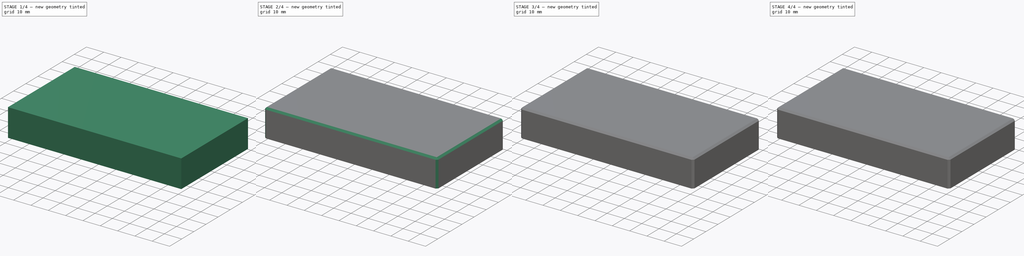
[diagram: build sequence overview — one tinted view per stage of 4, left to right]
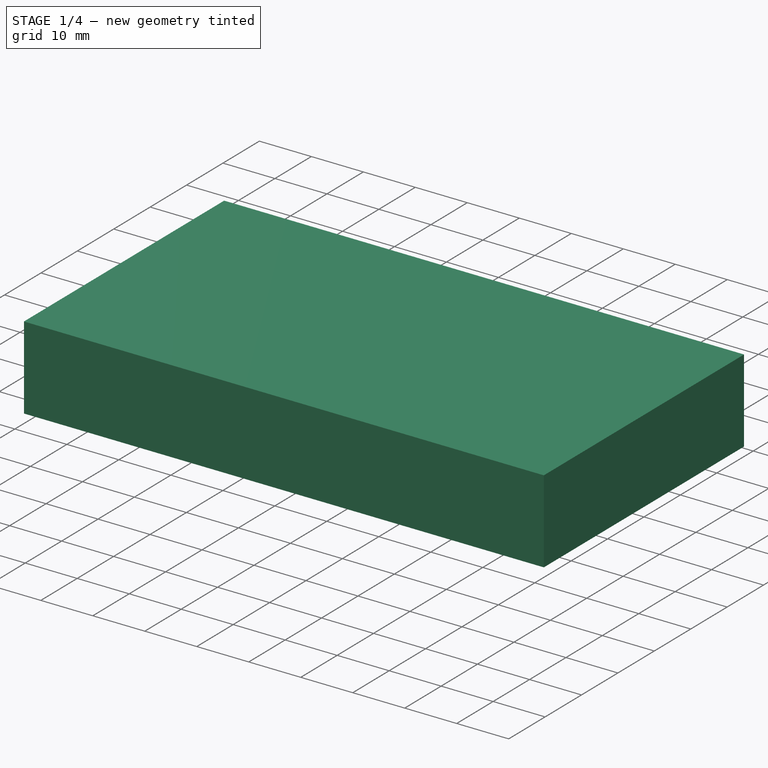
[diagram: stage 1 of 4 — iso view after this stage's code; geometry added in this stage tinted green]
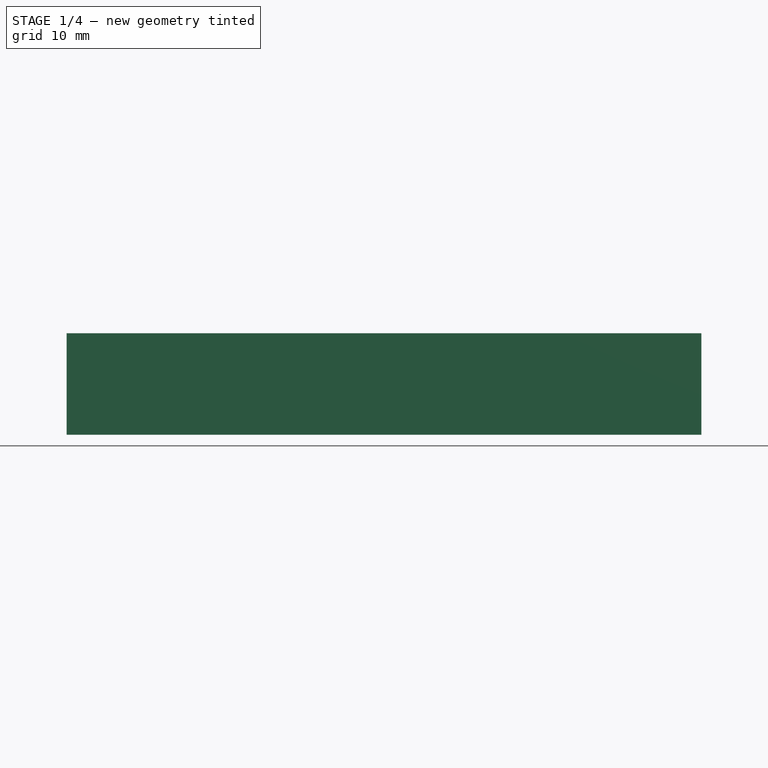
[diagram: stage 1 of 4 — front view after this stage's code; geometry added in this stage tinted green]
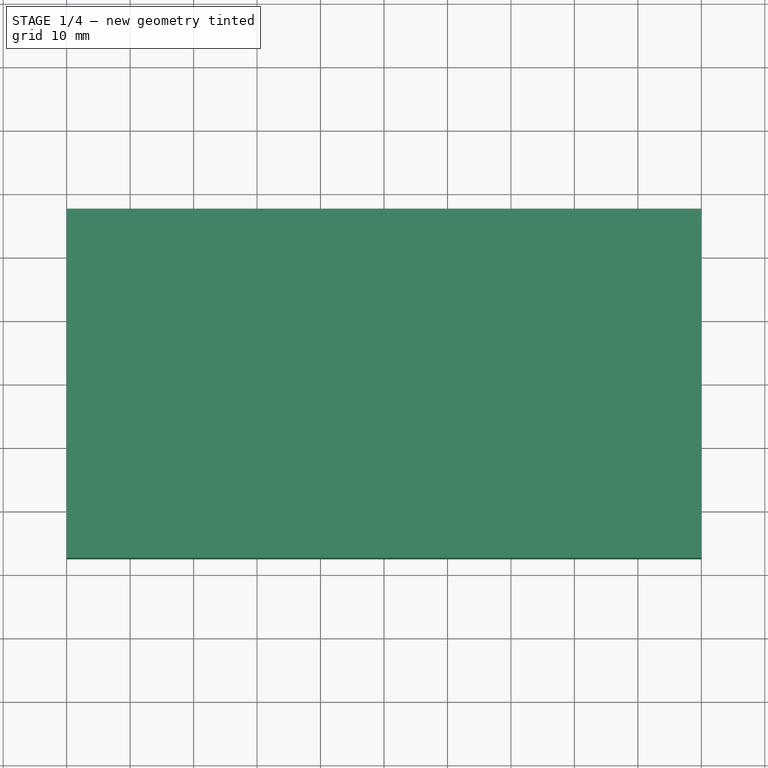
[diagram: stage 1 of 4 — top view after this stage's code; geometry added in this stage tinted green]
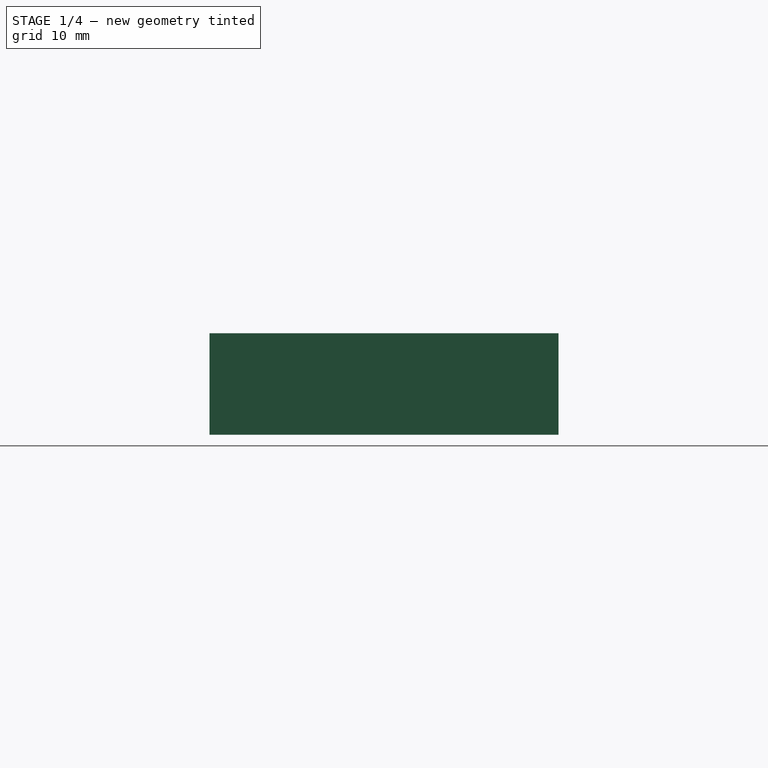
[diagram: stage 1 of 4 — right view after this stage's code; geometry added in this stage tinted green]
FCSTD DOCUMENT  (FreeCAD 0.20R29410 (Git))
Label: ShellA
License: All rights reserved
LicenseURL: http://en.wikipedia.org/wiki/All_rights_reserved
objects: Sketcher::SketchObject×7, PartDesign::Pocket×4, PartDesign::Pad×3, PartDesign::Chamfer×3, PartDesign::Mirrored×2, PartDesign::Thickness×1, PartDesign::CoordinateSystem×1, PartDesign::Body×1
note: 33 computed .brp shape members not serialized (recipe doc carries the construction recipe); baked Part::Feature solids carry a one-line shape summary decoded from their .brp

FEATURE [Sketcher::SketchObject] Sketch  label="TopProfile"
  FullyConstrained = true
  MapMode = 5
  Support = -> [XY_Plane]
  sketch-geometry (5):
    g0: LineSegment StartX=-50 StartY=27.5 StartZ=0 EndX=-50 EndY=-27.5 EndZ=0
    g1: LineSegment StartX=-50 StartY=-27.5 StartZ=0 EndX=50 EndY=-27.5 EndZ=0
    g2: LineSegment StartX=50 StartY=-27.5 StartZ=0 EndX=50 EndY=27.5 EndZ=0
    g3: LineSegment StartX=50 StartY=27.5 StartZ=0 EndX=-50 EndY=27.5 EndZ=0
    g4: GeomPoint X=0 Y=0 Z=0
  constraints (12):
    c: Coincident(g0,g1)
    c: Coincident(g1,g2)
    c: Coincident(g2,g3)
    c: Coincident(g3,g0)
    c: Horizontal(g1)
    c: Horizontal(g3)
    c: Vertical(g0)
    c: Vertical(g2)
    c: Symmetric(g1,g0,g4)
    c: Coincident(g4,g-1)
    c: DistanceX(g3,g3) = 100
    c: DistanceY(g0,g0) = 55
FEATURE [Sketcher::SketchObject] Sketch001  label="SideProfile"
  ExternalGeometry = -> [Sketch]
  FullyConstrained = true
  MapMode = 5
  Placement = pos=(0,0,0) rot=(0.57735,0.57735,0.57735;2.0944rad)
  Support = -> [YZ_Plane]
  sketch-geometry (8):
    g0: LineSegment StartX=-27.5 StartY=-2.15e-14 StartZ=0 EndX=-27.5 EndY=16 EndZ=0
    g1: LineSegment StartX=-27.5 StartY=16 StartZ=0 EndX=0 EndY=16 EndZ=0
    g2: LineSegment StartX=0 StartY=16 StartZ=0 EndX=0 EndY=14 EndZ=0
    g3: LineSegment StartX=0 StartY=14 StartZ=0 EndX=-24.5 EndY=14 EndZ=0
    g4: LineSegment StartX=-24.5 StartY=14 StartZ=0 EndX=-24.5 EndY=3 EndZ=0
    g5: LineSegment StartX=-24.5 StartY=3 StartZ=0 EndX=-26 EndY=3 EndZ=0
    g6: LineSegment StartX=-26 StartY=3 StartZ=0 EndX=-26 EndY=0 EndZ=0
    g7: LineSegment StartX=-26 StartY=0 StartZ=0 EndX=-27.5 EndY=-2.15e-14 EndZ=0
  constraints (23):
    c: Coincident(g0,g-3)
    c: Vertical(g0)
    c: Coincident(g0,g1)
    c: PointOnObject(g1,g-2)
    c: Horizontal(g1)
    c: Coincident(g1,g2)
    c: PointOnObject(g2,g-2)
    c: Coincident(g2,g3)
    c: Horizontal(g3)
    c: Coincident(g3,g4)
    c: Vertical(g4)
    c: Coincident(g4,g5)
    c: Horizontal(g5)
    c: Coincident(g5,g6)
    c: PointOnObject(g6,g-1)
    c: Vertical(g6)
    c: Coincident(g6,g7)
    c: Coincident(g7,g0)
    c: DistanceY(g6,g6) = 3  'CutoutHeight'
    c: DistanceY(g0,g0) = 16  'ShellHeight'
    c: DistanceY(g2,g2) = 2  'BaseThickness'
    c: DistanceX(g0,g3) = 3  'WallThickness'
    c: DistanceX(g7,g7) = 1.5  'CutoutThickness'
FEATURE [PartDesign::Pad] Pad
  Direction = (0,0,1)
  Length = 16
  Length2 = 10
  Profile = -> Sketch
  ReferenceAxis = -> Sketch [N_Axis]
  Type = 0
  expr: Length = <<SideProfile>>.Constraints.ShellHeight
FEATURE [PartDesign::Thickness] Thickness
  Base = -> Pad [Face5]
  BaseFeature = -> Pad
  Intersection = false
  Join = 0
  Mode = 0
  Reversed = true
  SupportTransform = false
  Value = 3
  expr: Value = <<SideProfile>>.Constraints.WallThickness
FEATURE [PartDesign::Pocket] Pocket
  BaseFeature = -> Thickness
  Direction = (0,0,1)
  Length = 1
  Length2 = 5
  Profile = -> Thickness [Face11]
  Type = 0
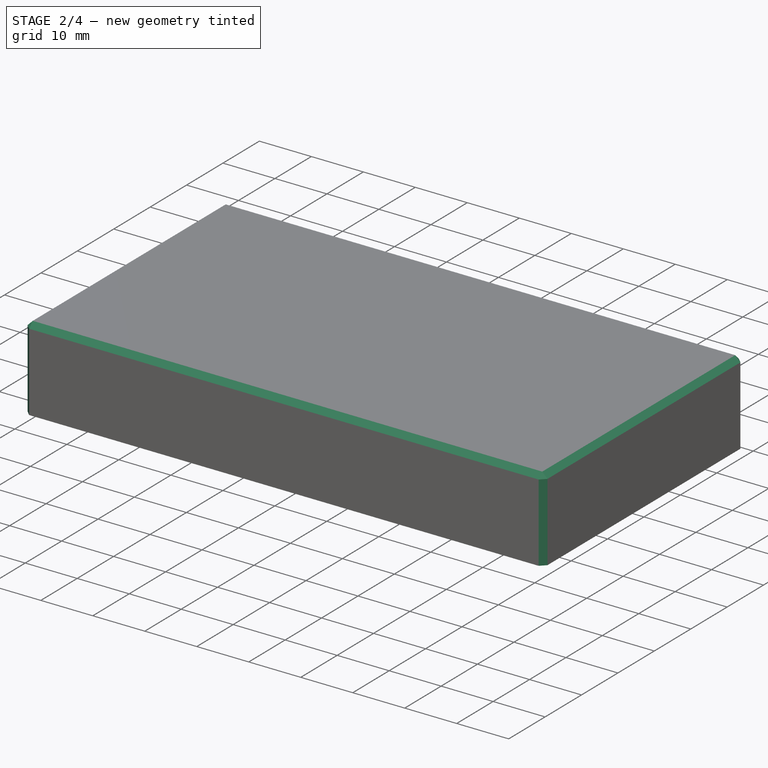
[diagram: stage 2 of 4 — iso view after this stage's code; geometry added in this stage tinted green]
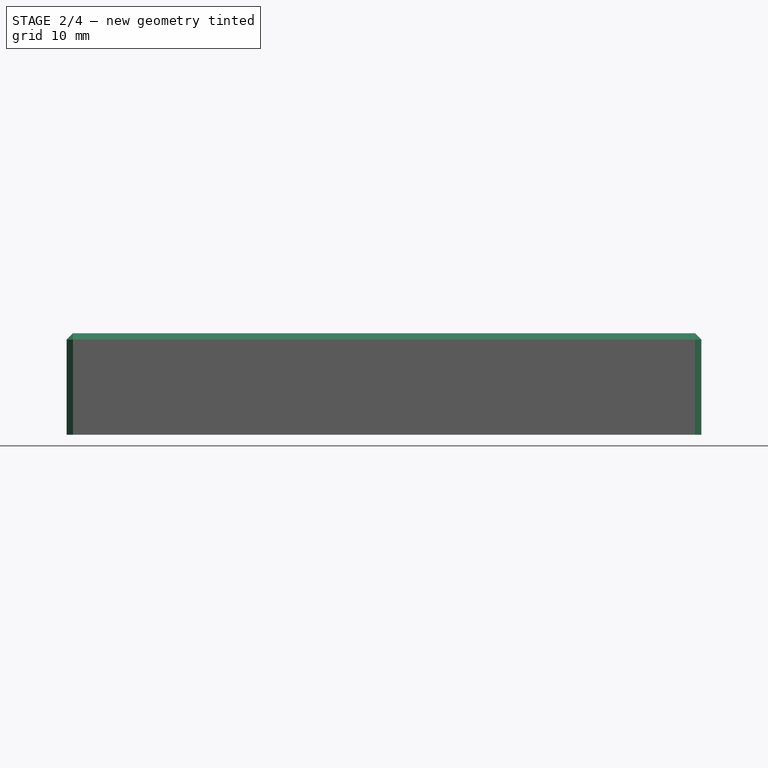
[diagram: stage 2 of 4 — front view after this stage's code; geometry added in this stage tinted green]
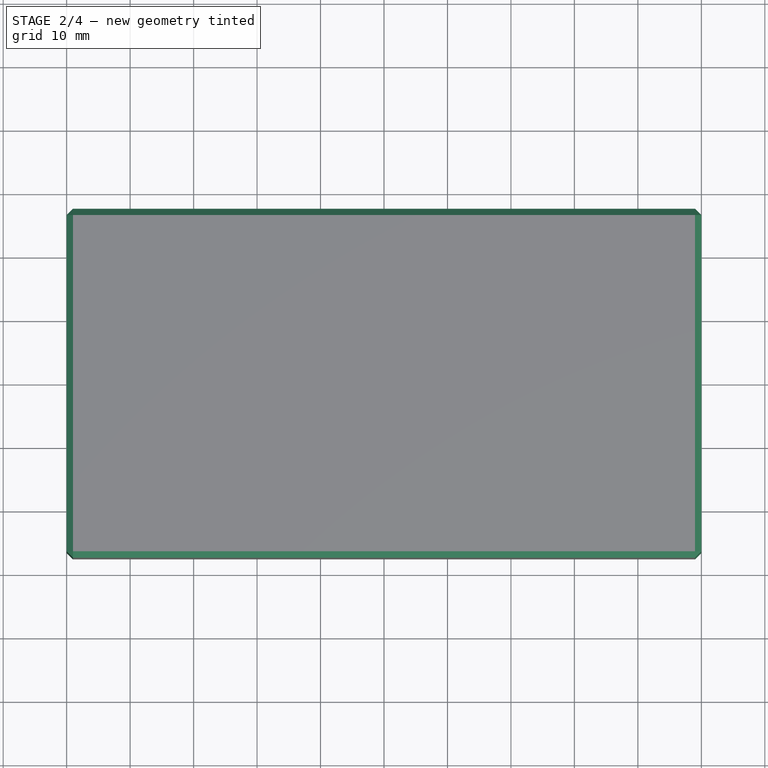
[diagram: stage 2 of 4 — top view after this stage's code; geometry added in this stage tinted green]
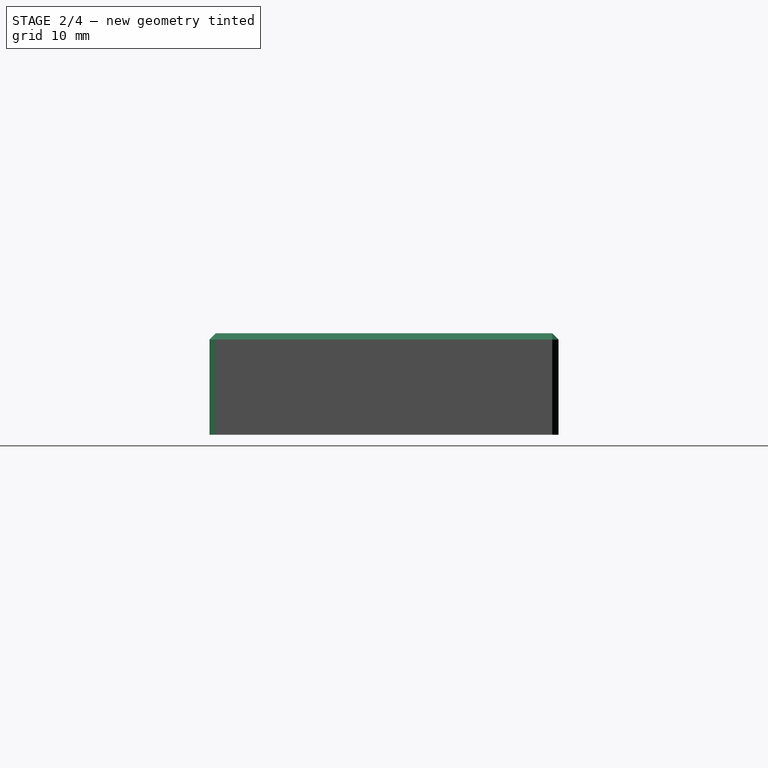
[diagram: stage 2 of 4 — right view after this stage's code; geometry added in this stage tinted green]
FEATURE [Sketcher::SketchObject] Sketch002
  ExternalGeometry = -> [Pocket]
  FullyConstrained = true
  MapMode = 5
  Placement = pos=(0,0,0) rot=(1,0,0;3.14159rad)
  Support = -> [Pocket]
  expr: Constraints[10] = <<SideProfile>>.Constraints.CutoutThickness
  expr: Constraints[11] = <<SideProfile>>.Constraints.CutoutThickness
  sketch-geometry (5):
    g0: LineSegment StartX=-48.5 StartY=26 StartZ=0 EndX=-48.5 EndY=-26 EndZ=0
    g1: LineSegment StartX=-48.5 StartY=-26 StartZ=0 EndX=48.5 EndY=-26 EndZ=0
    g2: LineSegment StartX=48.5 StartY=-26 StartZ=0 EndX=48.5 EndY=26 EndZ=0
    g3: LineSegment StartX=48.5 StartY=26 StartZ=0 EndX=-48.5 EndY=26 EndZ=0
    g4: GeomPoint X=0 Y=0 Z=0
  constraints (12):
    c: Coincident(g0,g1)
    c: Coincident(g1,g2)
    c: Coincident(g2,g3)
    c: Coincident(g3,g0)
    c: Horizontal(g1)
    c: Horizontal(g3)
    c: Vertical(g0)
    c: Vertical(g2)
    c: Symmetric(g1,g0,g4)
    c: Coincident(g4,g-1)
    c: DistanceX(g-3,g0) = 1.5
    c: DistanceY(g0,g-3) = 1.5
FEATURE [PartDesign::Pocket] Pocket001
  BaseFeature = -> Pocket
  Direction = (0,0,1)
  Length = 3
  Length2 = 5
  Profile = -> Sketch002
  ReferenceAxis = -> Sketch002 [N_Axis]
  Type = 0
  expr: Length = <<SideProfile>>.Constraints.CutoutHeight
FEATURE [PartDesign::Chamfer] Chamfer
  Angle = 45
  Base = -> Pocket001 [Edge1,Edge2,Edge5,Edge8,Edge16,Edge7,Edge4,Edge10]
  BaseFeature = -> Pocket001
  ChamferType = 0
  FlipDirection = false
  Size = 1
  Size2 = 1
  SupportTransform = false
  UseAllEdges = false
FEATURE [Sketcher::SketchObject] Sketch003
  ExternalGeometry = -> [Chamfer]
  FullyConstrained = true
  MapMode = 5
  Placement = pos=(0,0,14) rot=(1,0,0;3.14159rad)
  Support = -> [Chamfer]
  sketch-geometry (12):
    g0: LineSegment StartX=-36 StartY=24.5 StartZ=0 EndX=-34.5 EndY=24.5 EndZ=0
    g1: LineSegment StartX=-34.5 StartY=24.5 StartZ=0 EndX=-34.5 EndY=-24.5 EndZ=0
    g2: LineSegment StartX=-34.5 StartY=-24.5 StartZ=0 EndX=-36 EndY=-24.5 EndZ=0
    g3: LineSegment StartX=-36 StartY=-24.5 StartZ=0 EndX=-36 EndY=24.5 EndZ=0
    g4: GeomPoint X=0 Y=24.5 Z=0
    g5: GeomPoint X=-23.5 Y=24.5 Z=0
    g6: GeomPoint X=-35.25 Y=24.5 Z=0
    g7: LineSegment StartX=-12.5 StartY=24.5 StartZ=0 EndX=-11 EndY=24.5 EndZ=0
    g8: LineSegment StartX=-11 StartY=24.5 StartZ=0 EndX=-11 EndY=-24.5 EndZ=0
    g9: LineSegment StartX=-11 StartY=-24.5 StartZ=0 EndX=-12.5 EndY=-24.5 EndZ=0
    g10: LineSegment StartX=-12.5 StartY=-24.5 StartZ=0 EndX=-12.5 EndY=24.5 EndZ=0
    g11: GeomPoint X=-11.75 Y=24.5 Z=0
  constraints (27):
    c: Coincident(g0,g1)
    c: Coincident(g1,g2)
    c: Coincident(g2,g3)
    c: Coincident(g3,g0)
    c: Horizontal(g0)
    c: Horizontal(g2)
    c: Vertical(g1)
    c: Vertical(g3)
    c: PointOnObject(g0,g-3)
    c: PointOnObject(g1,g-4)
    c: DistanceX(g0,g0) = 1.5
    c: PointOnObject(g4,g-2)
    c: Symmetric(g-3,g4,g5)
    c: Symmetric(g0,g0,g6)
    c: Symmetric(g-3,g5,g6)
    c: Coincident(g7,g8)
    c: Coincident(g8,g9)
    c: Coincident(g9,g10)
    c: Coincident(g10,g7)
    c: Horizontal(g7)
    c: Horizontal(g9)
    c: Vertical(g8)
    c: Vertical(g10)
    c: PointOnObject(g8,g-4)
    c: Equal(g2,g9)
    c: Symmetric(g7,g7,g11)
    c: Symmetric(g5,g4,g11)
FEATURE [PartDesign::Pad] Pad001
  BaseFeature = -> Chamfer
  Direction = (0,0,-1)
  Length = 10
  Length2 = 10
  Profile = -> Sketch003
  ReferenceAxis = -> Sketch003 [N_Axis]
  Type = 3
  UpToFace = -> Chamfer [Face23]
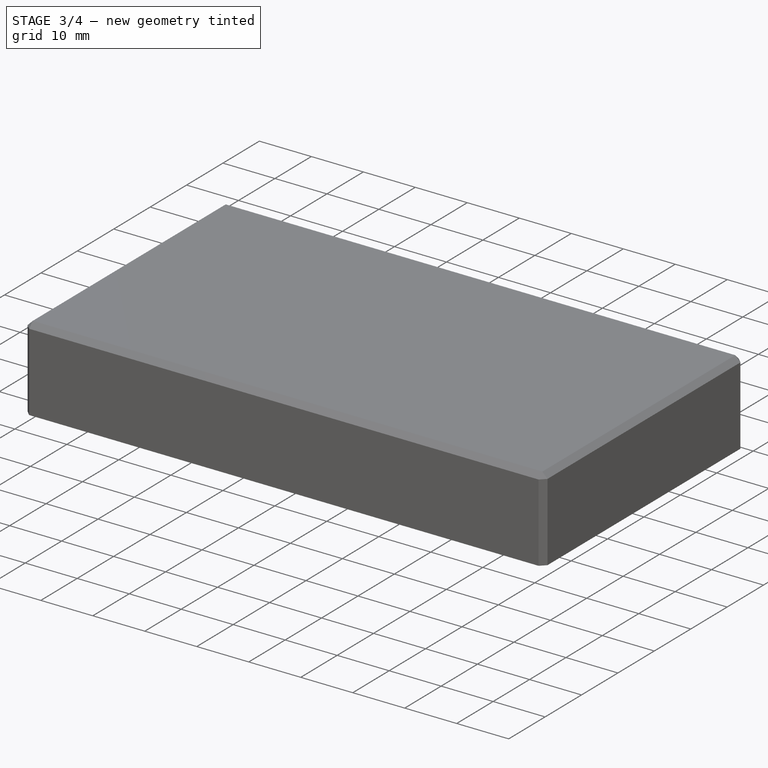
[diagram: stage 3 of 4 — iso view after this stage's code; geometry added in this stage tinted green]
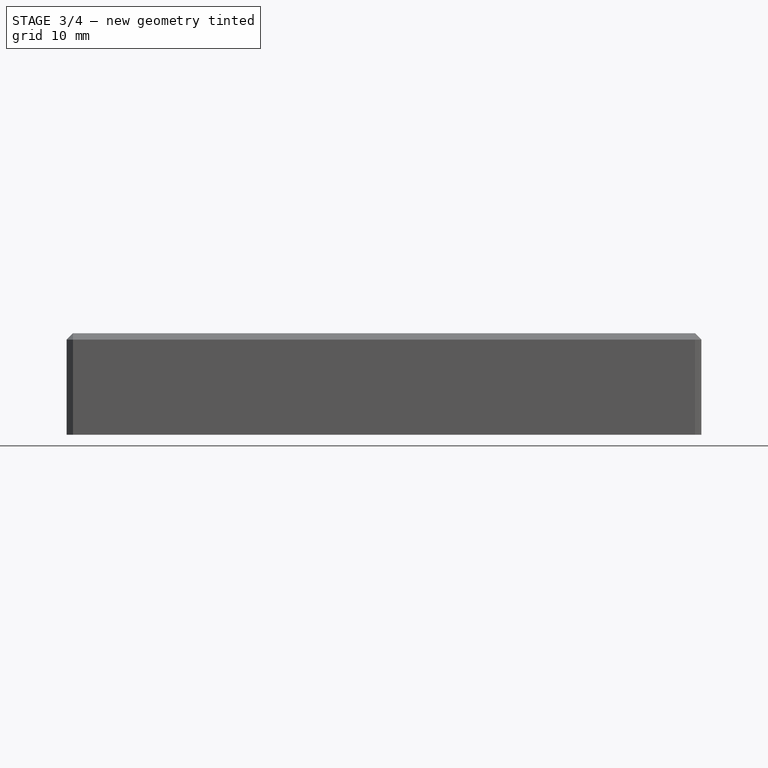
[diagram: stage 3 of 4 — front view after this stage's code; geometry added in this stage tinted green]
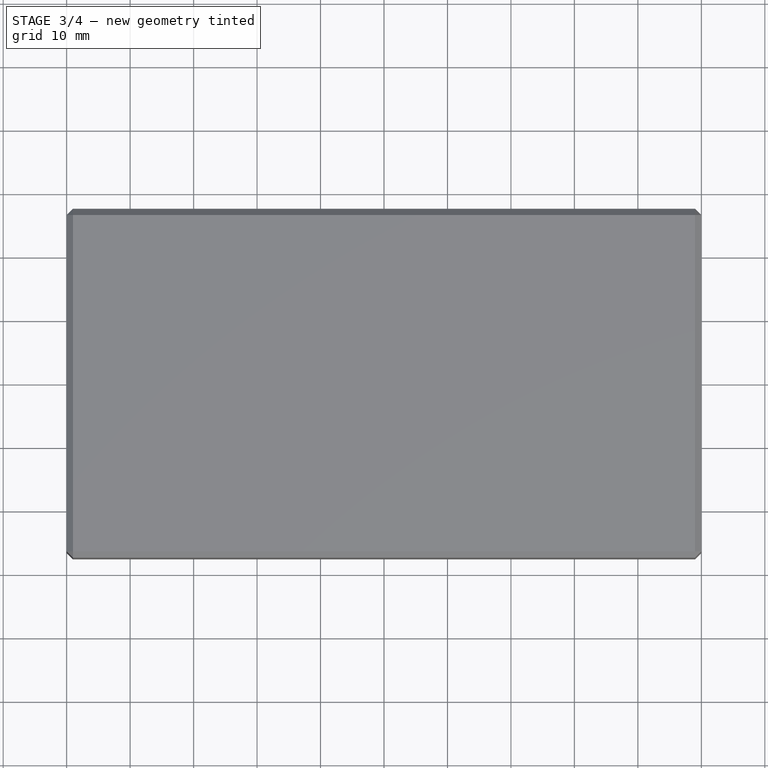
[diagram: stage 3 of 4 — top view after this stage's code; geometry added in this stage tinted green]
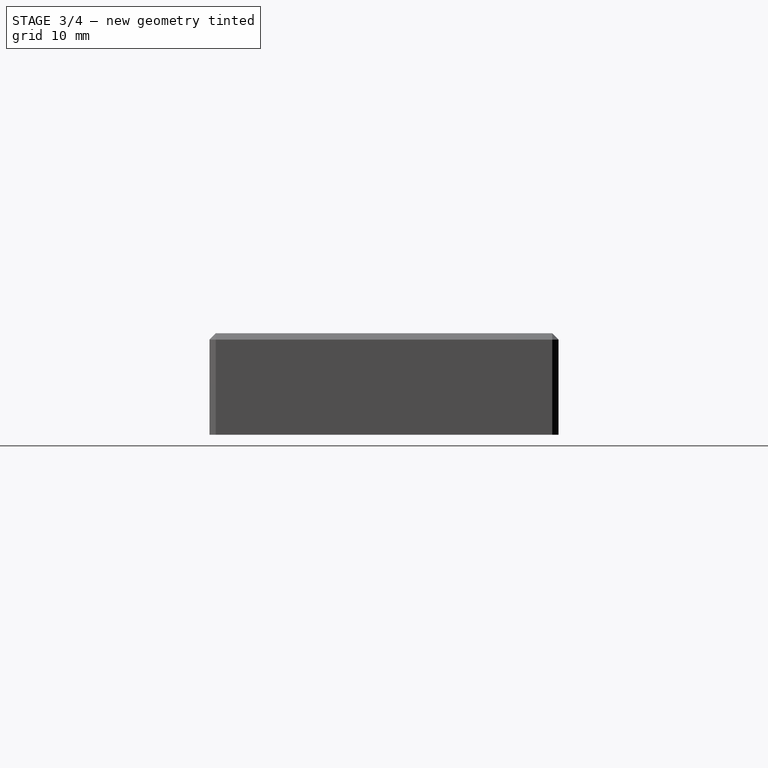
[diagram: stage 3 of 4 — right view after this stage's code; geometry added in this stage tinted green]
FEATURE [PartDesign::Mirrored] Mirrored
  BaseFeature = -> Pad001
  MirrorPlane = -> Sketch003 [V_Axis]
  Originals = -> [Pad001]
FEATURE [Sketcher::SketchObject] Sketch004
  ExternalGeometry = -> [Mirrored]
  FullyConstrained = true
  MapMode = 5
  Placement = pos=(0,0,3) rot=(1,0,0;3.14159rad)
  Support = -> [Mirrored]
  sketch-geometry (8):
    g0: LineSegment StartX=-36 StartY=23 StartZ=0 EndX=-34.5 EndY=23 EndZ=0
    g1: LineSegment StartX=-34.5 StartY=23 StartZ=0 EndX=-34.5 EndY=-23 EndZ=0
    g2: LineSegment StartX=-34.5 StartY=-23 StartZ=0 EndX=-36 EndY=-23 EndZ=0
    g3: LineSegment StartX=-36 StartY=-23 StartZ=0 EndX=-36 EndY=23 EndZ=0
    g4: LineSegment StartX=-12.5 StartY=23 StartZ=0 EndX=-11 EndY=23 EndZ=0
    g5: LineSegment StartX=-11 StartY=23 StartZ=0 EndX=-11 EndY=-23 EndZ=0
    g6: LineSegment StartX=-11 StartY=-23 StartZ=0 EndX=-12.5 EndY=-23 EndZ=0
    g7: LineSegment StartX=-12.5 StartY=-23 StartZ=0 EndX=-12.5 EndY=23 EndZ=0
  constraints (24):
    c: Coincident(g0,g1)
    c: Coincident(g1,g2)
    c: Coincident(g2,g3)
    c: Coincident(g3,g0)
    c: Horizontal(g0)
    c: Horizontal(g2)
    c: Vertical(g1)
    c: Vertical(g3)
    c: PointOnObject(g0,g-3)
    c: PointOnObject(g1,g-4)
    c: Coincident(g4,g5)
    c: Coincident(g5,g6)
    c: Coincident(g6,g7)
    c: Coincident(g7,g4)
    c: Horizontal(g4)
    c: Horizontal(g6)
    c: Vertical(g5)
    c: Vertical(g7)
    c: PointOnObject(g4,g-5)
    c: PointOnObject(g5,g-6)
    c: Horizontal(g1,g6)
    c: Horizontal(g0,g4)
    c: DistanceY(g0,g-3) = 1.5
    c: DistanceY(g-3,g2) = 1.5
FEATURE [PartDesign::Pocket] Pocket002
  BaseFeature = -> Mirrored
  Direction = (0,0,1)
  Length = 0
  Length2 = 5
  Offset = -1.5
  Profile = -> Sketch004
  ReferenceAxis = -> Sketch004 [N_Axis]
  Type = 3
  UpToFace = -> Mirrored [Face61]
FEATURE [PartDesign::Mirrored] Mirrored001
  BaseFeature = -> Pocket002
  MirrorPlane = -> Sketch004 [V_Axis]
  Originals = -> [Pocket002]
FEATURE [PartDesign::Chamfer] Chamfer001
  Angle = 45
  Base = -> Mirrored001 [Edge75,Edge81,Edge87,Edge93,Edge102,Edge108,Edge114,Edge120]
  BaseFeature = -> Mirrored001
  ChamferType = 0
  FlipDirection = false
  Size = 1.49
  Size2 = 1
  SupportTransform = false
  UseAllEdges = false
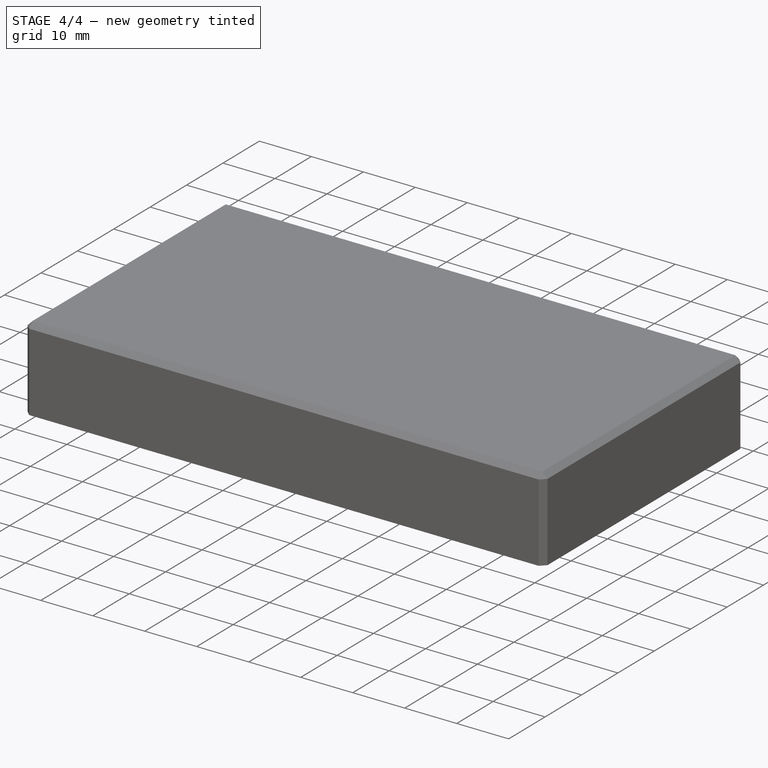
[diagram: stage 4 of 4 — iso view after this stage's code; geometry added in this stage tinted green]
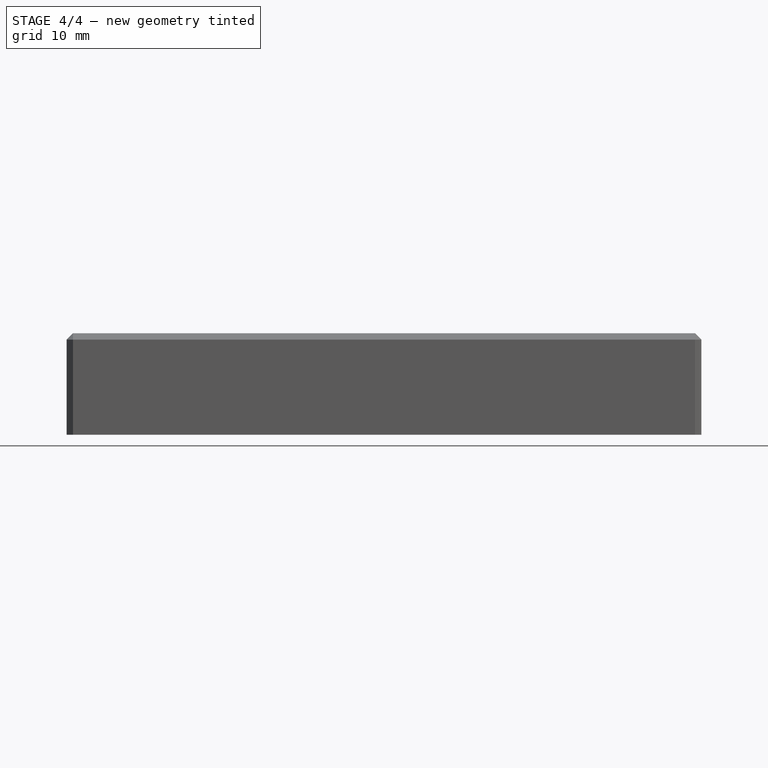
[diagram: stage 4 of 4 — front view after this stage's code; geometry added in this stage tinted green]
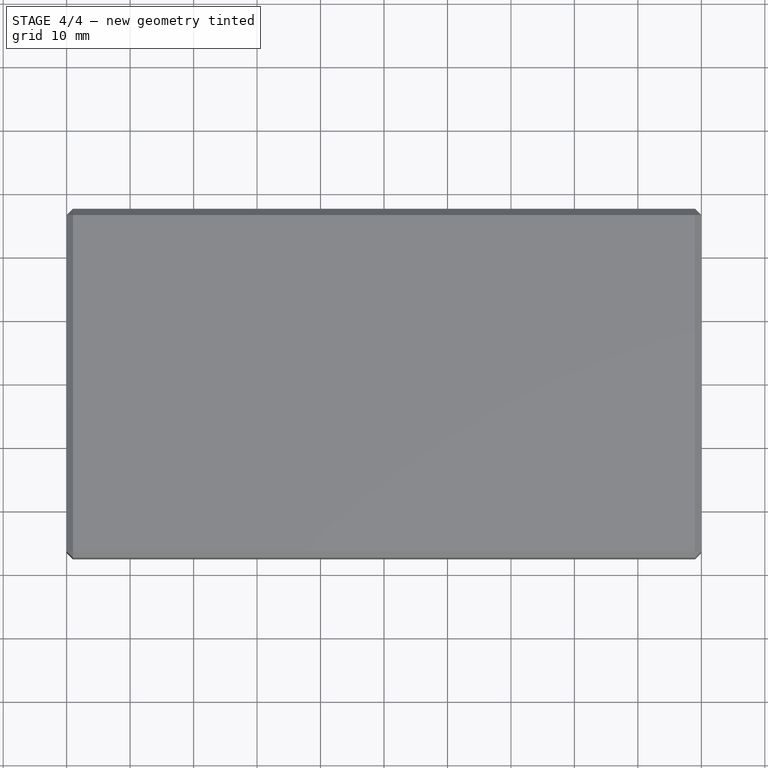
[diagram: stage 4 of 4 — top view after this stage's code; geometry added in this stage tinted green]
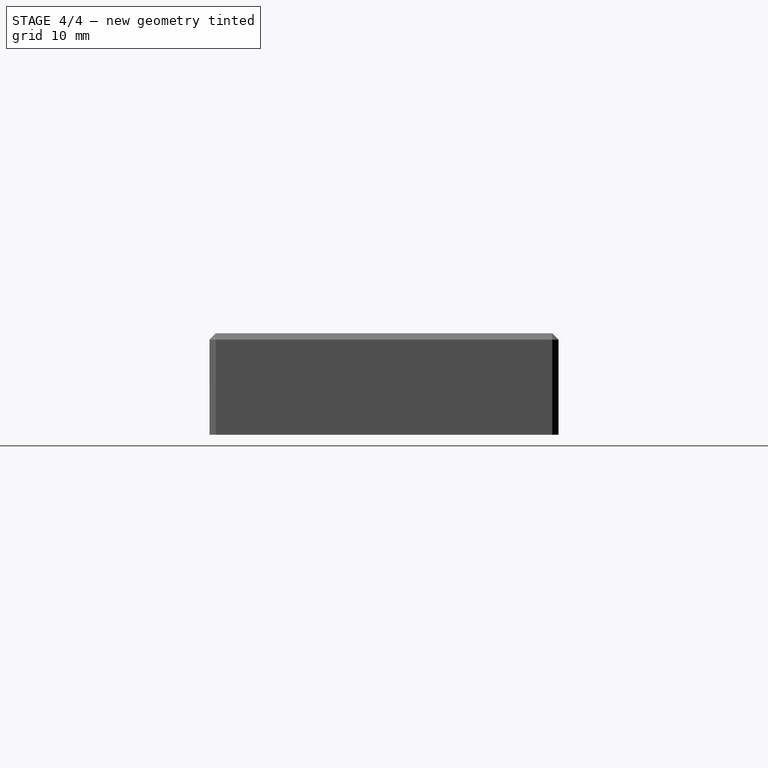
[diagram: stage 4 of 4 — right view after this stage's code; geometry added in this stage tinted green]
FEATURE [Sketcher::SketchObject] Sketch005
  ExternalGeometry = -> [Chamfer001]
  FullyConstrained = true
  MapMode = 5
  Placement = pos=(0,0,14) rot=(1,0,0;3.14159rad)
  Support = -> [Chamfer001]
  sketch-geometry (5):
    g0: LineSegment StartX=-47 StartY=0.75 StartZ=0 EndX=-47 EndY=-0.75 EndZ=0
    g1: LineSegment StartX=-47 StartY=-0.75 StartZ=0 EndX=47 EndY=-0.75 EndZ=0
    g2: LineSegment StartX=47 StartY=-0.75 StartZ=0 EndX=47 EndY=0.75 EndZ=0
    g3: LineSegment StartX=47 StartY=0.75 StartZ=0 EndX=-47 EndY=0.75 EndZ=0
    g4: GeomPoint X=0 Y=0 Z=0
  constraints (12):
    c: Coincident(g0,g1)
    c: Coincident(g1,g2)
    c: Coincident(g2,g3)
    c: Coincident(g3,g0)
    c: Horizontal(g1)
    c: Horizontal(g3)
    c: Vertical(g0)
    c: Vertical(g2)
    c: Symmetric(g1,g0,g4)
    c: Coincident(g4,g-1)
    c: PointOnObject(g1,g-4)
    c: DistanceY(g0,g0) = 1.5
FEATURE [PartDesign::Pad] Pad002
  BaseFeature = -> Chamfer001
  Direction = (0,0,-1)
  Length = 10
  Length2 = 10
  Profile = -> Sketch005
  ReferenceAxis = -> Sketch005 [N_Axis]
  Type = 3
  UpToFace = -> Chamfer001 [Face4]
FEATURE [Sketcher::SketchObject] Sketch006
  ExternalGeometry = -> [Pad002]
  FullyConstrained = true
  MapMode = 5
  Placement = pos=(0,0,3) rot=(1,0,0;3.14159rad)
  Support = -> [Pad002]
  sketch-geometry (5):
    g0: LineSegment StartX=-45.5 StartY=0.75 StartZ=0 EndX=-45.5 EndY=-0.75 EndZ=0
    g1: LineSegment StartX=-45.5 StartY=-0.75 StartZ=0 EndX=45.5 EndY=-0.75 EndZ=0
    g2: LineSegment StartX=45.5 StartY=-0.75 StartZ=0 EndX=45.5 EndY=0.75 EndZ=0
    g3: LineSegment StartX=45.5 StartY=0.75 StartZ=0 EndX=-45.5 EndY=0.75 EndZ=0
    g4: GeomPoint X=0 Y=0 Z=0
  constraints (12):
    c: Coincident(g0,g1)
    c: Coincident(g1,g2)
    c: Coincident(g2,g3)
    c: Coincident(g3,g0)
    c: Horizontal(g1)
    c: Horizontal(g3)
    c: Vertical(g0)
    c: Vertical(g2)
    c: Symmetric(g1,g0,g4)
    c: Coincident(g4,g-1)
    c: PointOnObject(g1,g-4)
    c: DistanceX(g2,g-3) = 1.5
FEATURE [PartDesign::Pocket] Pocket003
  BaseFeature = -> Pad002
  Direction = (0,0,1)
  Length = 0
  Length2 = 5
  Profile = -> Sketch006
  ReferenceAxis = -> Sketch006 [N_Axis]
  Type = 3
  UpToFace = -> Pad002 [Face45]
FEATURE [PartDesign::Chamfer] Chamfer002
  Angle = 45
  Base = -> Pocket003 [Edge97,Edge71]
  BaseFeature = -> Pocket003
  ChamferType = 0
  FlipDirection = false
  Refine = true
  Size = 1.49
  Size2 = 1
  SupportTransform = false
  UseAllEdges = false
FEATURE [PartDesign::CoordinateSystem] ShellA_LCS
  AttacherType = Attacher::AttachEngine3D
FEATURE [PartDesign::Body] Body
  Group = -> [Sketch,Sketch001,Pad,Thickness,Pocket,Sketch002,Pocket001,Chamfer,Sketch003,Pad001,Mirrored,Sketch004,Pocket002,Mirrored001,Chamfer001,Sketch005,Pad002,Sketch006,Pocket003,Chamfer002,ShellA_LCS]
  Origin = -> Origin
  Tip = -> Chamfer002
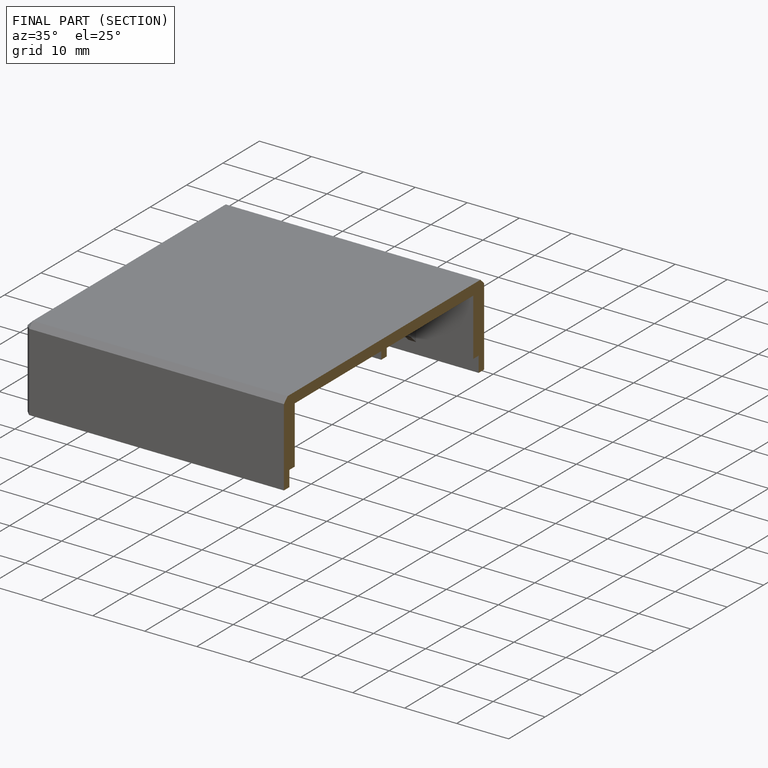
[diagram: finished part — half-section view (interior)]
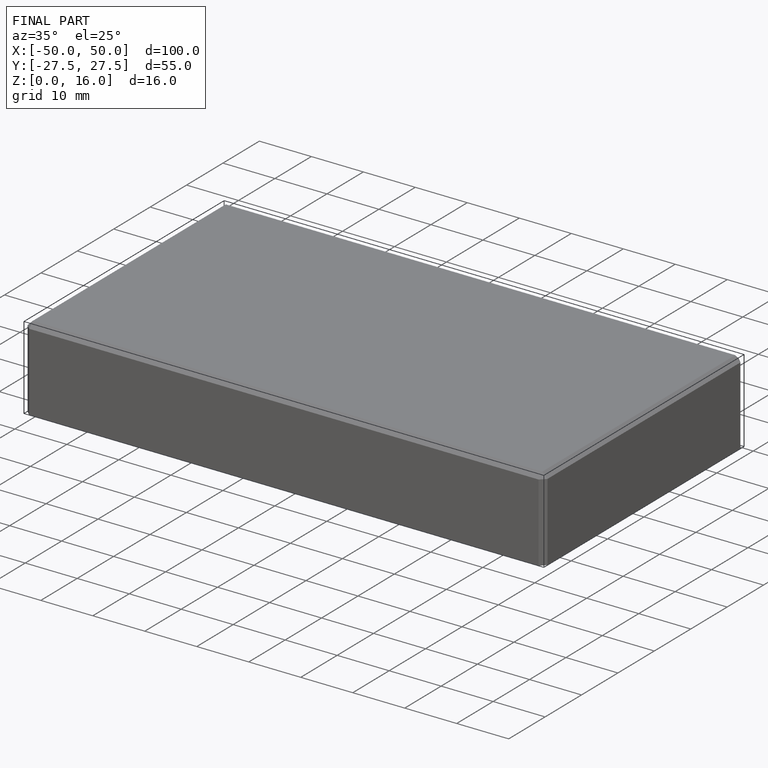
[diagram: finished part — iso view with bounding-box wireframe]
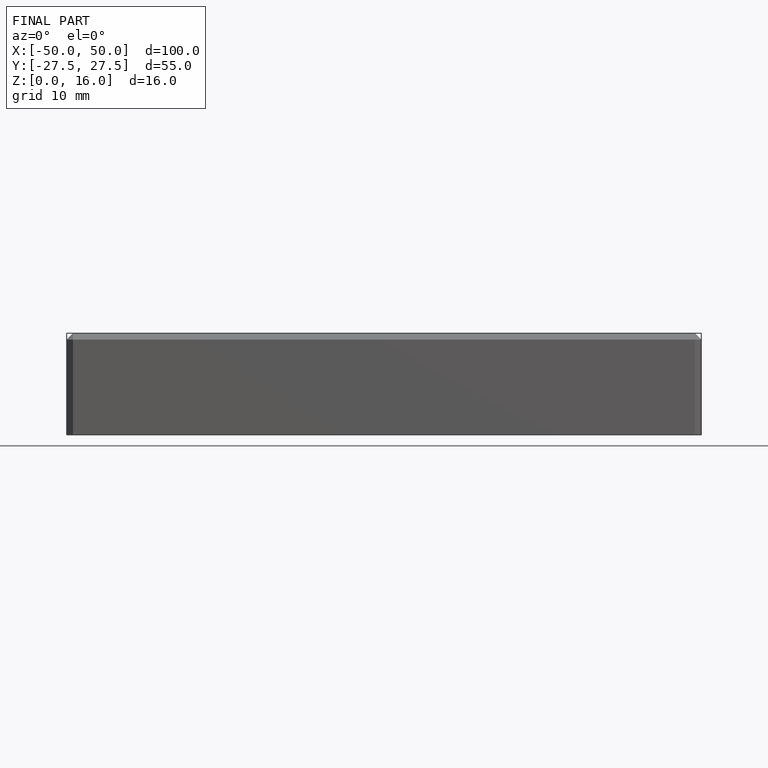
[diagram: finished part — front view with bounding-box wireframe]
